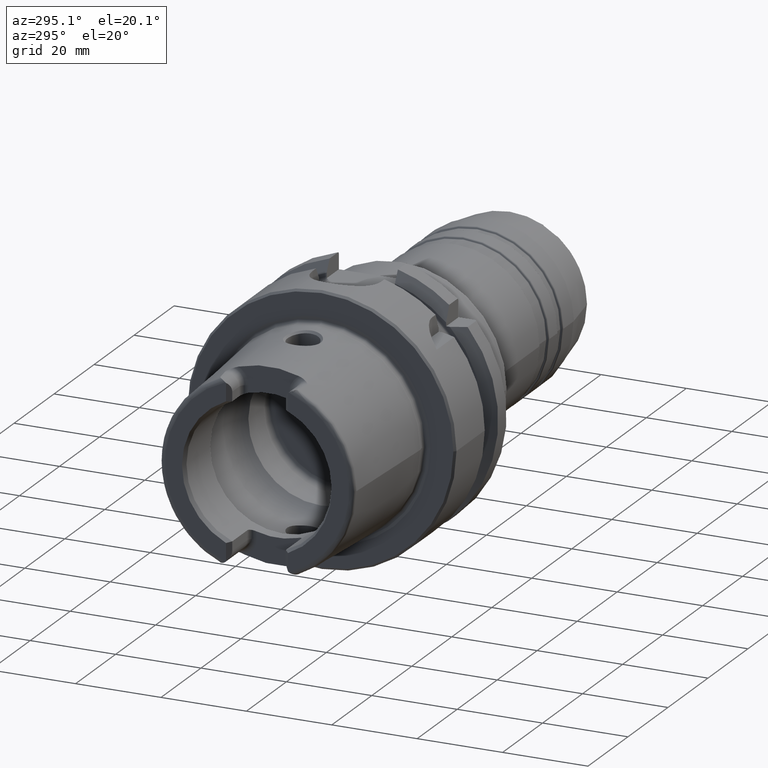
[diagram: clean part render]
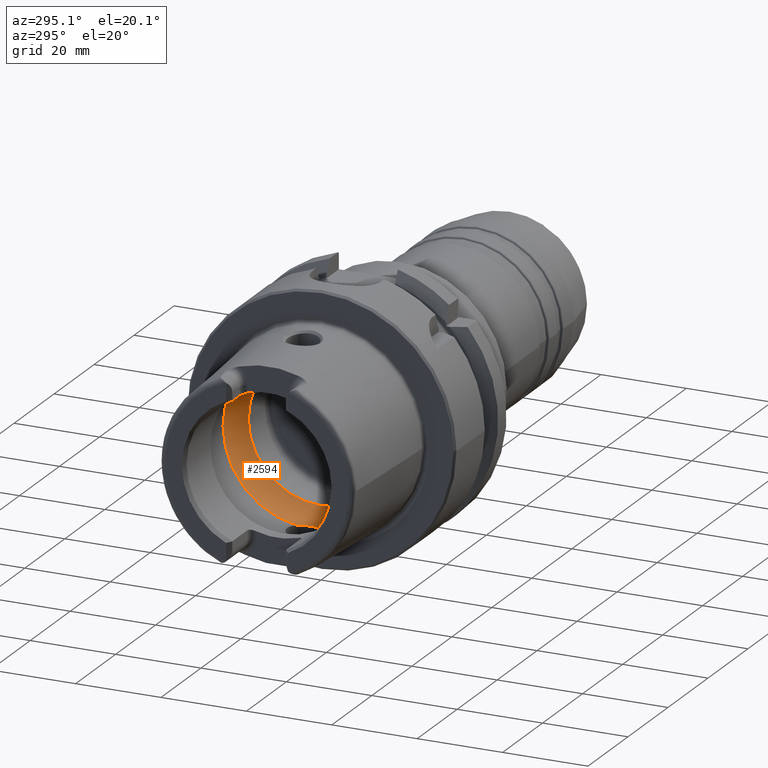
[diagram: same view with one face highlighted and labeled with its STEP entity id]
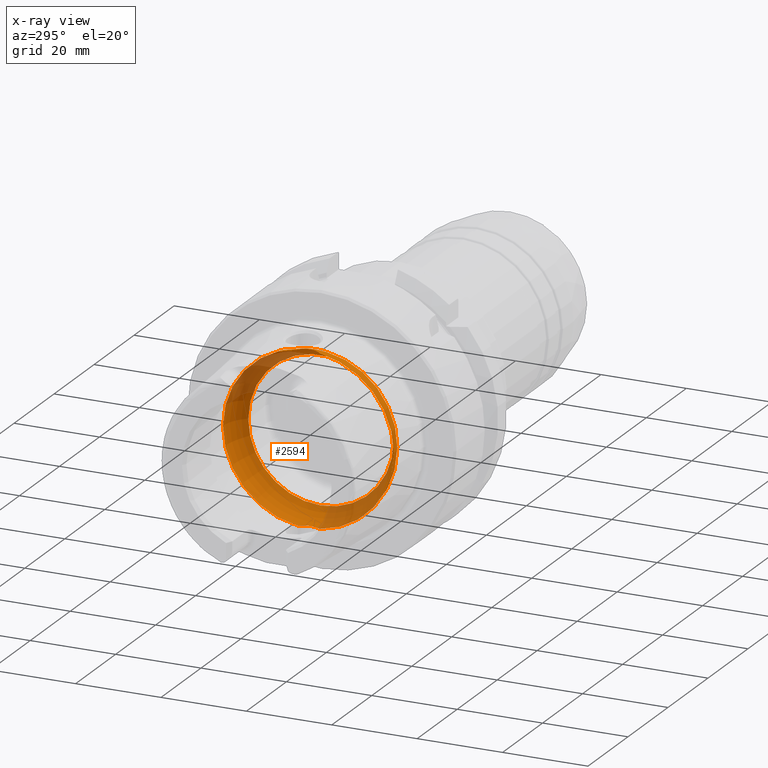
[diagram: x-ray of the same camera — body ghosted, the highlighted face saturated]
A machine part, auxiliary view. The second image highlights one B-rep face of the part: STEP entity #2594.
The next image is the same camera in x-ray: the body ghosted, the highlighted face saturated — about 29% of this face is hidden behind the body in this view.
In plain terms, the highlighted toroidal blend (fillet) surface has major radius 12 mm and minor (blend) radius 8 mm.
Its self-contained STEP definition (entity closure, byte-faithful):
#49=B_SPLINE_CURVE_WITH_KNOTS('',3,(#4659,#4660,#4661,#4662,#4663,#4664,
#4665,#4666,#4667,#4668,#4669,#4670),.UNSPECIFIED.,.F.,.F.,(4,2,2,2,2,4),
(-0.576707489926969,-0.455716402860838,-0.365368737325041,-0.32054974107213,
-0.288976283252766,-0.288398128098722),.UNSPECIFIED.);
#51=B_SPLINE_CURVE_WITH_KNOTS('',3,(#4703,#4704,#4705,#4706,#4707,#4708,
#4709,#4710,#4711,#4712),.UNSPECIFIED.,.F.,.F.,(4,2,2,2,4),(-0.288398128098722,
-0.257600392372142,-0.213718373510557,-0.137948403428905,0.),
 .UNSPECIFIED.);
#54=B_SPLINE_CURVE_WITH_KNOTS('',3,(#4828,#4829,#4830,#4831,#4832,#4833,
#4834,#4835,#4836,#4837,#4838,#4839),.UNSPECIFIED.,.F.,.F.,(4,2,2,2,2,4),
(-0.576707489926933,-0.455716402860807,-0.365368737325012,-0.320549741072106,
-0.288976283252744,-0.288398128098698),.UNSPECIFIED.);
#56=B_SPLINE_CURVE_WITH_KNOTS('',3,(#4872,#4873,#4874,#4875,#4876,#4877,
#4878,#4879,#4880,#4881),.UNSPECIFIED.,.F.,.F.,(4,2,2,2,4),(-0.288398128098698,
-0.257600392372128,-0.213718373510553,-0.137948403428902,0.),
 .UNSPECIFIED.);
#129=TOROIDAL_SURFACE('',#2889,12.,8.);
#257=FACE_OUTER_BOUND('',#400,.T.);
#400=EDGE_LOOP('',(#2038,#2039,#2040,#2041,#2042,#2043,#2044,#2045,#2046,
#2047,#2048,#2049));
#844=CIRCLE('',#2883,20.);
#848=CIRCLE('',#2887,20.);
#849=CIRCLE('',#2888,20.);
#850=CIRCLE('',#2890,17.);
#851=CIRCLE('',#2891,17.);
#852=CIRCLE('',#2892,17.);
#853=CIRCLE('',#2893,8.);
#1104=VERTEX_POINT('',#4656);
#1105=VERTEX_POINT('',#4658);
#1106=VERTEX_POINT('',#4671);
#1109=VERTEX_POINT('',#4826);
#1110=VERTEX_POINT('',#4827);
#1111=VERTEX_POINT('',#4840);
#1113=VERTEX_POINT('',#4886);
#1117=VERTEX_POINT('',#4898);
#1118=VERTEX_POINT('',#4899);
#1119=VERTEX_POINT('',#4901);
#1443=EDGE_CURVE('',#1105,#1104,#49,.T.);
#1445=EDGE_CURVE('',#1104,#1106,#51,.T.);
#1449=EDGE_CURVE('',#1109,#1110,#54,.T.);
#1451=EDGE_CURVE('',#1110,#1111,#56,.T.);
#1454=EDGE_CURVE('',#1113,#1109,#844,.T.);
#1459=EDGE_CURVE('',#1106,#1113,#848,.T.);
#1460=EDGE_CURVE('',#1111,#1105,#849,.T.);
#1461=EDGE_CURVE('',#1117,#1118,#850,.T.);
#1462=EDGE_CURVE('',#1119,#1117,#851,.T.);
#1463=EDGE_CURVE('',#1118,#1119,#852,.T.);
#1464=EDGE_CURVE('',#1118,#1104,#853,.T.);
#2038=ORIENTED_EDGE('',*,*,#1461,.F.);
#2039=ORIENTED_EDGE('',*,*,#1462,.F.);
#2040=ORIENTED_EDGE('',*,*,#1463,.F.);
#2041=ORIENTED_EDGE('',*,*,#1464,.T.);
#2042=ORIENTED_EDGE('',*,*,#1445,.T.);
#2043=ORIENTED_EDGE('',*,*,#1459,.T.);
#2044=ORIENTED_EDGE('',*,*,#1454,.T.);
#2045=ORIENTED_EDGE('',*,*,#1449,.T.);
#2046=ORIENTED_EDGE('',*,*,#1451,.T.);
#2047=ORIENTED_EDGE('',*,*,#1460,.T.);
#2048=ORIENTED_EDGE('',*,*,#1443,.T.);
#2049=ORIENTED_EDGE('',*,*,#1464,.F.);
#2594=ADVANCED_FACE('',(#257),#129,.F.);
#2883=AXIS2_PLACEMENT_3D('',#4887,#3494,#3495);
#2887=AXIS2_PLACEMENT_3D('',#4895,#3503,#3504);
#2888=AXIS2_PLACEMENT_3D('',#4896,#3505,#3506);
#2889=AXIS2_PLACEMENT_3D('',#4897,#3507,#3508);
#2890=AXIS2_PLACEMENT_3D('',#4900,#3509,#3510);
#2891=AXIS2_PLACEMENT_3D('',#4902,#3511,#3512);
#2892=AXIS2_PLACEMENT_3D('',#4903,#3513,#3514);
#2893=AXIS2_PLACEMENT_3D('',#4904,#3515,#3516);
#3494=DIRECTION('center_axis',(-1.,0.,0.));
#3495=DIRECTION('ref_axis',(0.,0.,1.));
#3503=DIRECTION('center_axis',(-1.,0.,0.));
#3504=DIRECTION('ref_axis',(0.,0.,1.));
#3505=DIRECTION('center_axis',(-1.,0.,0.));
#3506=DIRECTION('ref_axis',(0.,0.,1.));
#3507=DIRECTION('center_axis',(-1.,0.,0.));
#3508=DIRECTION('ref_axis',(0.,0.,1.));
#3509=DIRECTION('center_axis',(-1.,0.,0.));
#3510=DIRECTION('ref_axis',(0.,0.,1.));
#3511=DIRECTION('center_axis',(-1.,0.,0.));
#3512=DIRECTION('ref_axis',(0.,0.,1.));
#3513=DIRECTION('center_axis',(-1.,0.,0.));
#3514=DIRECTION('ref_axis',(0.,0.,1.));
#3515=DIRECTION('center_axis',(0.,1.,-1.22464679914735E-16));
#3516=DIRECTION('ref_axis',(0.,-1.22464679914735E-16,-1.));
#4656=CARTESIAN_POINT('',(-5.25,-3.6885832437187E-16,-19.9307944116589));
#4658=CARTESIAN_POINT('',(-6.3,2.60240273593461,-19.8299646999182));
#4659=CARTESIAN_POINT('Ctrl Pts',(-6.3,2.60240273593462,-19.8299646999182));
#4660=CARTESIAN_POINT('Ctrl Pts',(-6.02135700807983,2.31330986502881,-19.8679040553113));
#4661=CARTESIAN_POINT('Ctrl Pts',(-5.79033009489734,1.98064918550539,-19.890591169119));
#4662=CARTESIAN_POINT('Ctrl Pts',(-5.4867559347239,1.34543685595402,-19.9160762142355));
#4663=CARTESIAN_POINT('Ctrl Pts',(-5.39007954405641,1.05909527261747,-19.9223713998338));
#4664=CARTESIAN_POINT('Ctrl Pts',(-5.29825184053117,0.617966692523932,-19.9280498303184));
#4665=CARTESIAN_POINT('Ctrl Pts',(-5.27657003878054,0.469994704559193,-19.9292919985393));
#4666=CARTESIAN_POINT('Ctrl Pts',(-5.25476109400056,0.216252544174992,-19.9305312191434));
#4667=CARTESIAN_POINT('Ctrl Pts',(-5.25016676806113,0.111043433894874,-19.9307851133249));
#4668=CARTESIAN_POINT('Ctrl Pts',(-5.25000148602981,0.00385492015310341,
-19.9307943288045));
#4669=CARTESIAN_POINT('Ctrl Pts',(-5.25,0.00192745284672571,-19.9307944116589));
#4670=CARTESIAN_POINT('Ctrl Pts',(-5.25,-1.22655814364354E-15,-19.9307944116589));
#4671=CARTESIAN_POINT('',(-6.3,-2.60240273593461,-19.8299646999182));
#4703=CARTESIAN_POINT('Ctrl Pts',(-5.25,-1.21430643318376E-15,-19.9307944116589));
#4704=CARTESIAN_POINT('Ctrl Pts',(-5.25,-0.102673448439657,-19.9307944116589));
#4705=CARTESIAN_POINT('Ctrl Pts',(-5.25421684930313,-0.205305866402814,
-19.9305613545514));
#4706=CARTESIAN_POINT('Ctrl Pts',(-5.27464110625334,-0.453434827119473,
-19.9294026077432));
#4707=CARTESIAN_POINT('Ctrl Pts',(-5.29516467443997,-0.598409706843586,
-19.9282296486912));
#4708=CARTESIAN_POINT('Ctrl Pts',(-5.37406649070666,-0.989396372030705,
-19.9233785291009));
#4709=CARTESIAN_POINT('Ctrl Pts',(-5.44891810120348,-1.23128278857668,-19.9185486409462));
#4710=CARTESIAN_POINT('Ctrl Pts',(-5.72687568605109,-1.88691112132017,-19.8966847278005));
#4711=CARTESIAN_POINT('Ctrl Pts',(-5.98230637151864,-2.2727947221344,-19.8732210954731));
#4712=CARTESIAN_POINT('Ctrl Pts',(-6.3,-2.60240273593462,-19.8299646999182));
#4826=CARTESIAN_POINT('',(-6.3,-2.60240273593461,19.8299646999182));
#4827=CARTESIAN_POINT('',(-5.25,1.12300386496818E-15,19.9307944116589));
#4828=CARTESIAN_POINT('Ctrl Pts',(-6.3,-2.60240273593462,19.8299646999182));
#4829=CARTESIAN_POINT('Ctrl Pts',(-6.02135700807986,-2.31330986502884,19.8679040553113));
#4830=CARTESIAN_POINT('Ctrl Pts',(-5.79033009489738,-1.98064918550546,19.890591169119));
#4831=CARTESIAN_POINT('Ctrl Pts',(-5.48675593472392,-1.34543685595409,19.9160762142355));
#4832=CARTESIAN_POINT('Ctrl Pts',(-5.39007954405642,-1.05909527261754,19.9223713998338));
#4833=CARTESIAN_POINT('Ctrl Pts',(-5.29825184053117,-0.617966692523972,
19.9280498303184));
#4834=CARTESIAN_POINT('Ctrl Pts',(-5.27657003878054,-0.469994704559233,
19.9292919985393));
#4835=CARTESIAN_POINT('Ctrl Pts',(-5.25476109400056,-0.216252544174991,
19.9305312191434));
#4836=CARTESIAN_POINT('Ctrl Pts',(-5.25016676806113,-0.111043433894851,
19.9307851133249));
#4837=CARTESIAN_POINT('Ctrl Pts',(-5.2500014860298,-0.00385492015311072,
19.9307943288045));
#4838=CARTESIAN_POINT('Ctrl Pts',(-5.25,-0.00192745284672909,19.9307944116589));
#4839=CARTESIAN_POINT('Ctrl Pts',(-5.25,1.81500434093853E-15,19.9307944116589));
#4840=CARTESIAN_POINT('',(-6.3,2.60240273593461,19.8299646999182));
#4872=CARTESIAN_POINT('Ctrl Pts',(-5.25,1.85615411929518E-15,19.9307944116589));
#4873=CARTESIAN_POINT('Ctrl Pts',(-5.25,0.1026734484396,19.9307944116589));
#4874=CARTESIAN_POINT('Ctrl Pts',(-5.25421684930312,0.20530586640278,19.9305613545513));
#4875=CARTESIAN_POINT('Ctrl Pts',(-5.27464110625333,0.453434827119507,19.9294026077432));
#4876=CARTESIAN_POINT('Ctrl Pts',(-5.29516467443997,0.598409706843592,19.9282296486912));
#4877=CARTESIAN_POINT('Ctrl Pts',(-5.37406649070666,0.989396372030691,19.9233785291009));
#4878=CARTESIAN_POINT('Ctrl Pts',(-5.44891810120347,1.23128278857668,19.9185486409462));
#4879=CARTESIAN_POINT('Ctrl Pts',(-5.72687568605109,1.88691112132019,19.8966847278005));
#4880=CARTESIAN_POINT('Ctrl Pts',(-5.98230637151865,2.27279472213441,19.8732210954731));
#4881=CARTESIAN_POINT('Ctrl Pts',(-6.3,2.60240273593462,19.8299646999182));
#4886=CARTESIAN_POINT('',(-6.3,-20.,2.44929359829471E-15));
#4887=CARTESIAN_POINT('Origin',(-6.3,0.,0.));
#4895=CARTESIAN_POINT('Origin',(-6.3,0.,0.));
#4896=CARTESIAN_POINT('Origin',(-6.3,0.,0.));
#4897=CARTESIAN_POINT('Origin',(-6.3,0.,0.));
#4898=CARTESIAN_POINT('',(-0.055002001601602,17.,0.));
#4899=CARTESIAN_POINT('',(-0.0550020016016017,-2.0818995585505E-15,-17.));
#4900=CARTESIAN_POINT('Origin',(-0.0550020016016017,0.,0.));
#4901=CARTESIAN_POINT('',(-0.0550020016016017,-17.,2.0818995585505E-15));
#4902=CARTESIAN_POINT('Origin',(-0.0550020016016017,0.,0.));
#4903=CARTESIAN_POINT('Origin',(-0.0550020016016017,0.,0.));
#4904=CARTESIAN_POINT('Origin',(-6.3,-1.46957615897682E-15,-12.));